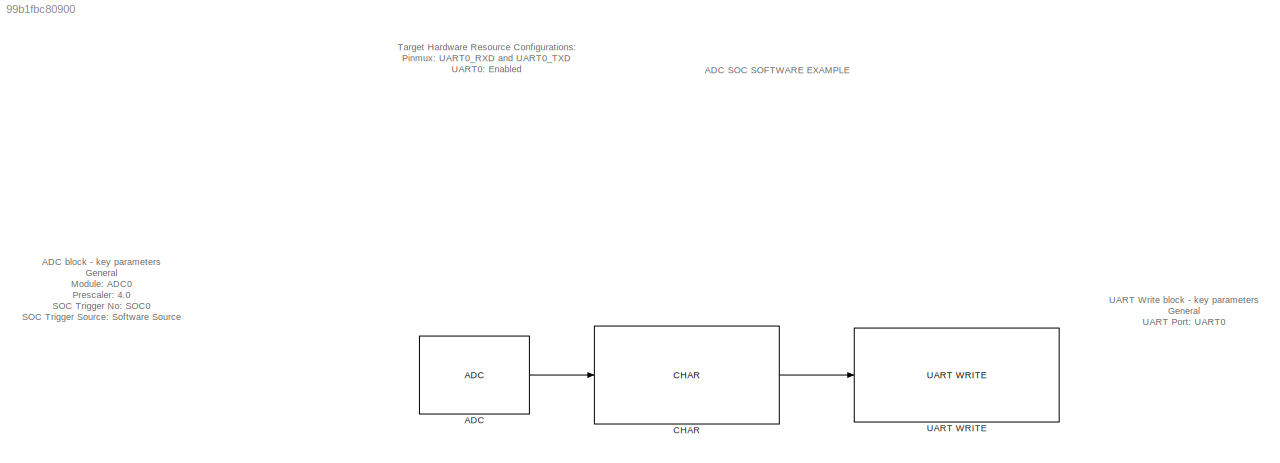
MODEL slx_99b1fbc80900
KIND model
CONFIG AbsTol = auto
CONFIG EnableMultiTasking = off
CONFIG FixedStep = auto
CONFIG MaxStep = auto
CONFIG MinStep = auto
CONFIG RelTol = 1e-3
CONFIG SampleTimeConstraint = Unconstrained
CONFIG SolverName = FixedStepAuto
CONFIG StartTime = 0.0
CONFIG StopTime = 10.0
BLOCK [Reference] ADC  REF=peripheral_library_blocks_am263x/ADC
  SourceBlock = peripheral_library_blocks_am263x/ADC
  SourceType = ADC_AM263X
BLOCK [Reference] CHAR  REF=peripheral_library_blocks_am263x/CHAR
  SourceBlock = peripheral_library_blocks_am263x/CHAR
  SourceType = CHAR
BLOCK [Reference] UART WRITE  REF=peripheral_library_blocks_am263x/UART WRITE
  SourceBlock = peripheral_library_blocks_am263x/UART WRITE
  SourceType = UART_WRITE_AM263X
ANNOTATION (root): ADC block - key parameters General Module: ADC0 Prescaler: 4.0 SOC Trigger No: SOC0 SOC Trigger Source: Software Source Post Interrupt: True Interrupt Number: ADC Interrupt 1 Input Channels Channel: Channel 2
ANNOTATION (root): UART Write block - key parameters General UART Port: UART0
ANNOTATION (root): ADC SOC SOFTWARE EXAMPLE
ANNOTATION (root): Target Hardware Resource Configurations: Pinmux: UART0_RXD and UART0_TXD UART0: Enabled
LINE ADC:1 -> CHAR:1
LINE CHAR:1 -> UART WRITE:1
